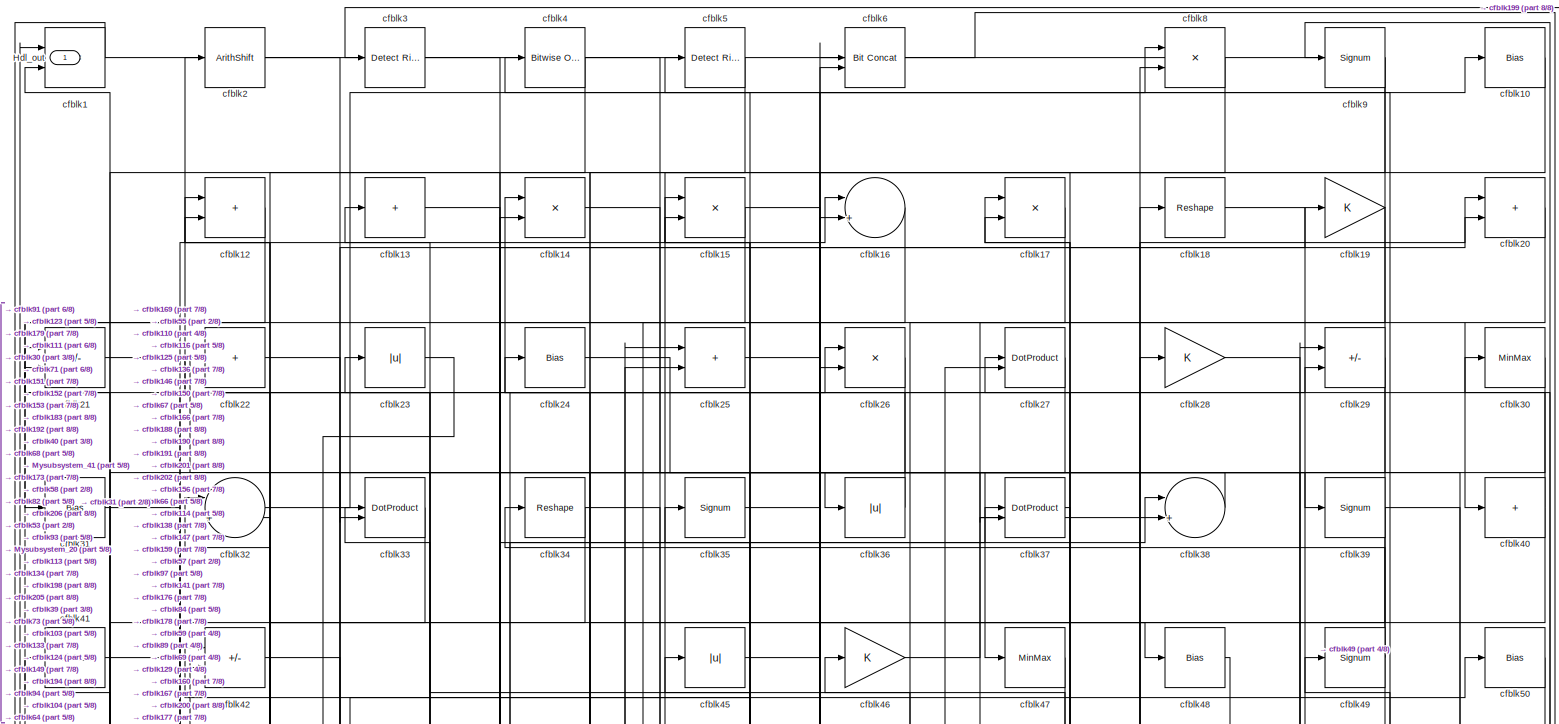
[diagram: root canvas - part 1/8, full width, top band]
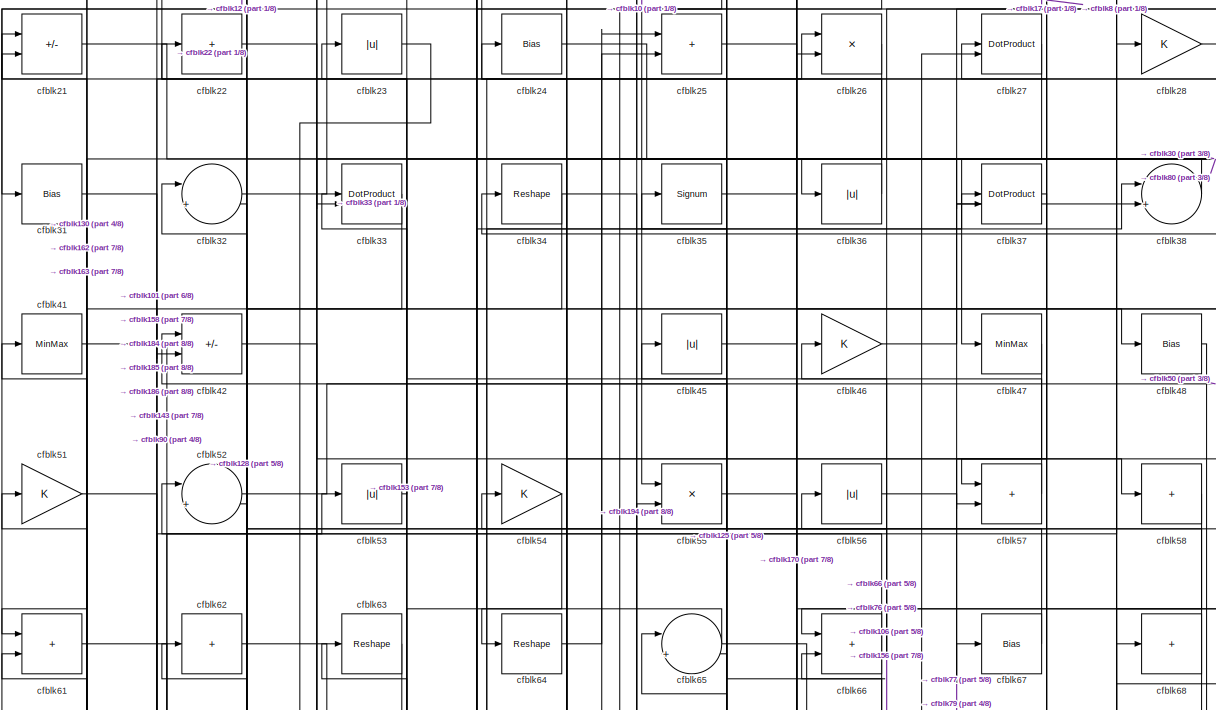
[diagram: root canvas - part 2/8, full width, top band]
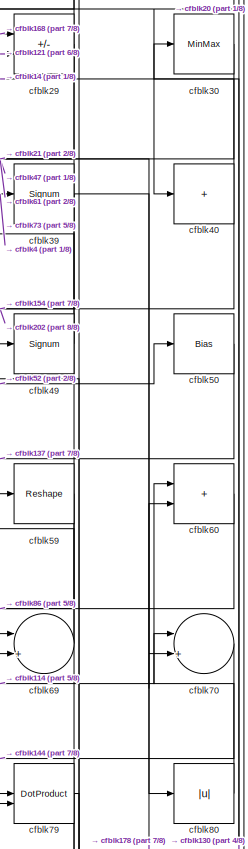
[diagram: root canvas - part 3/8, top right region]
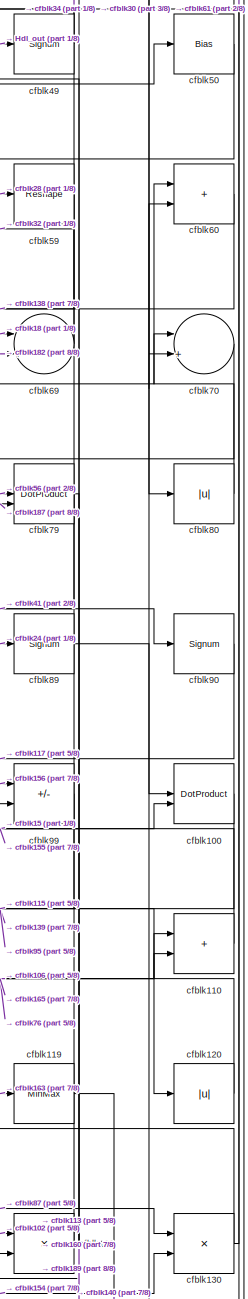
[diagram: root canvas - part 4/8, middle right region]
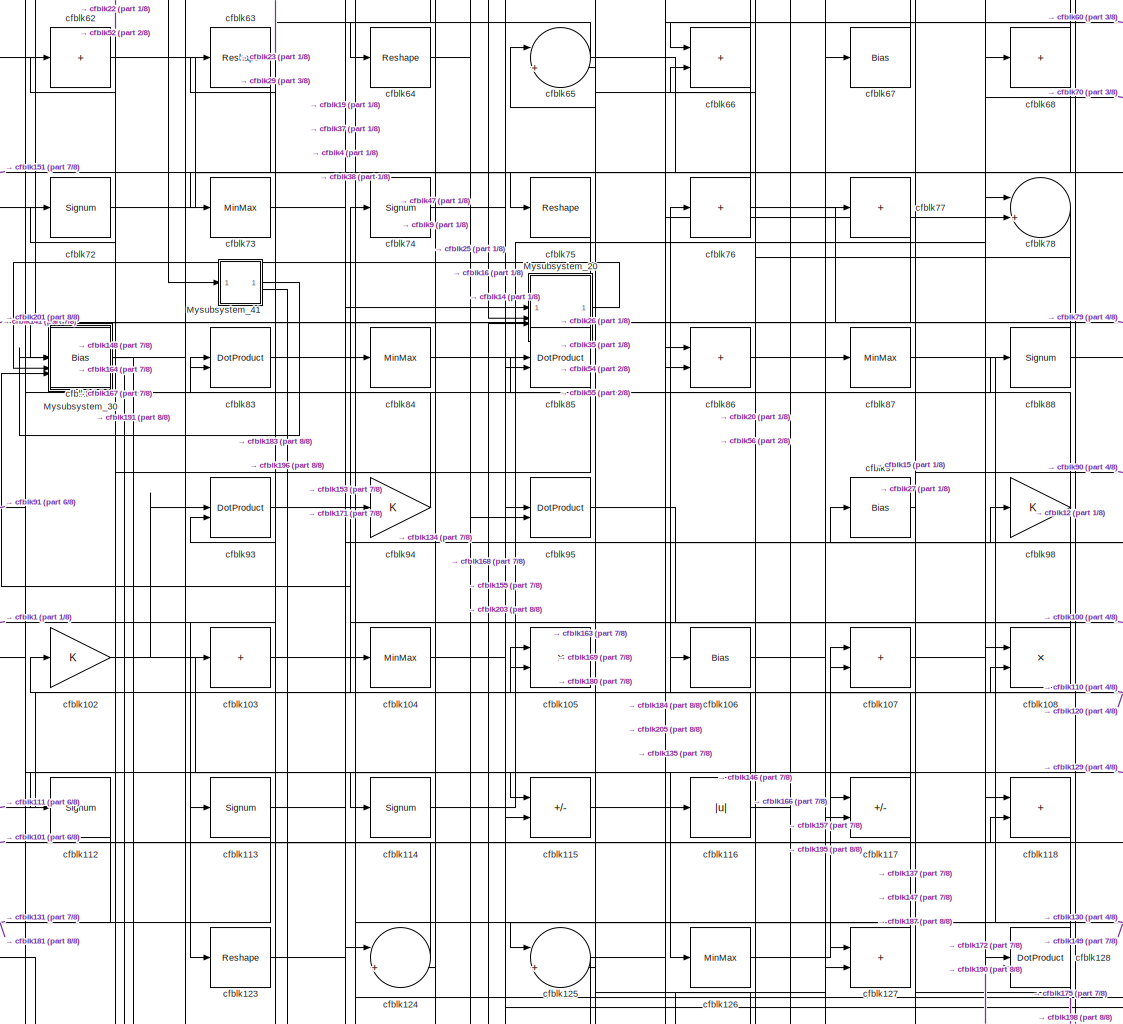
[diagram: root canvas - part 5/8, central region]
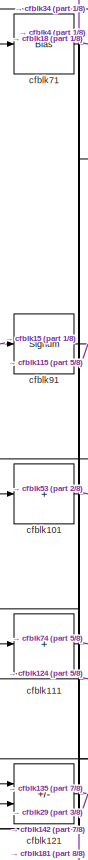
[diagram: root canvas - part 6/8, middle left region]
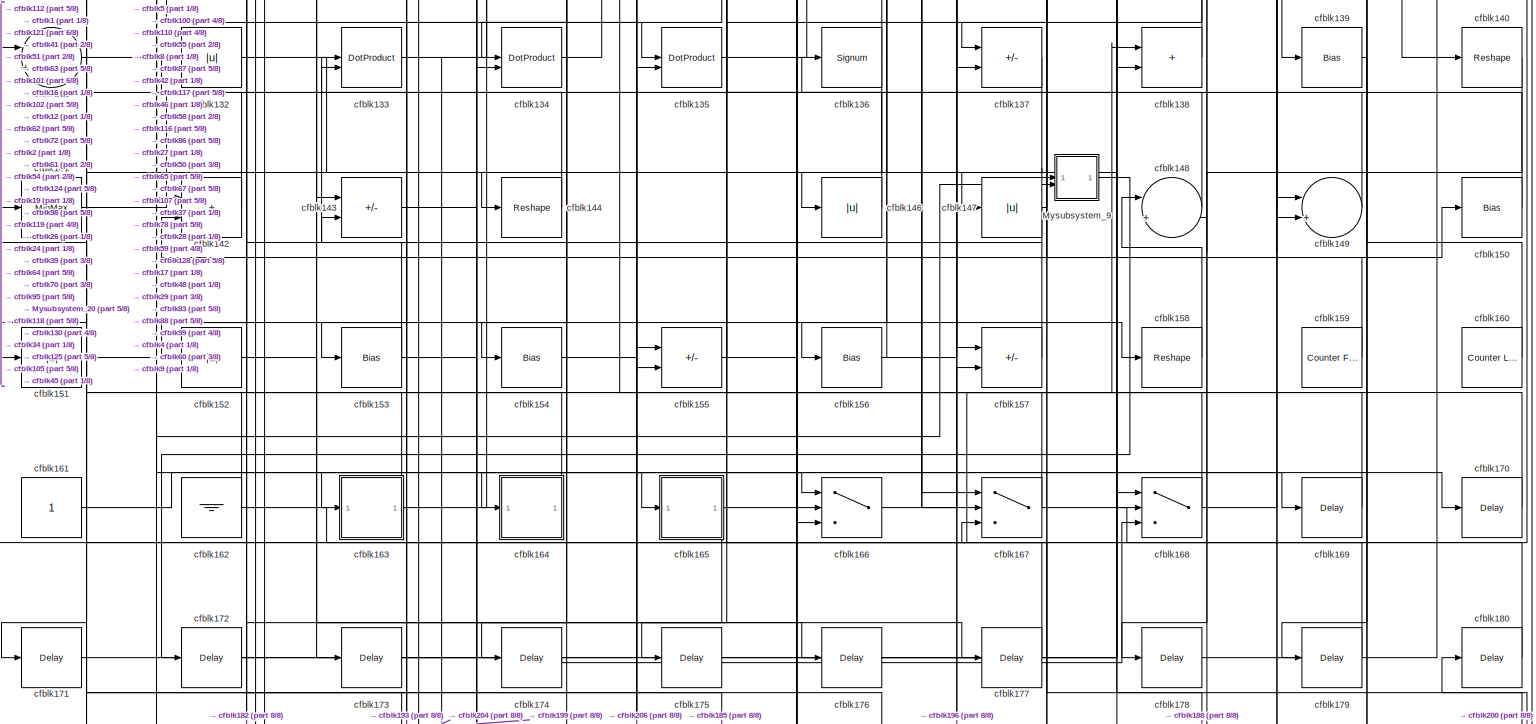
[diagram: root canvas - part 7/8, full width, bottom band]
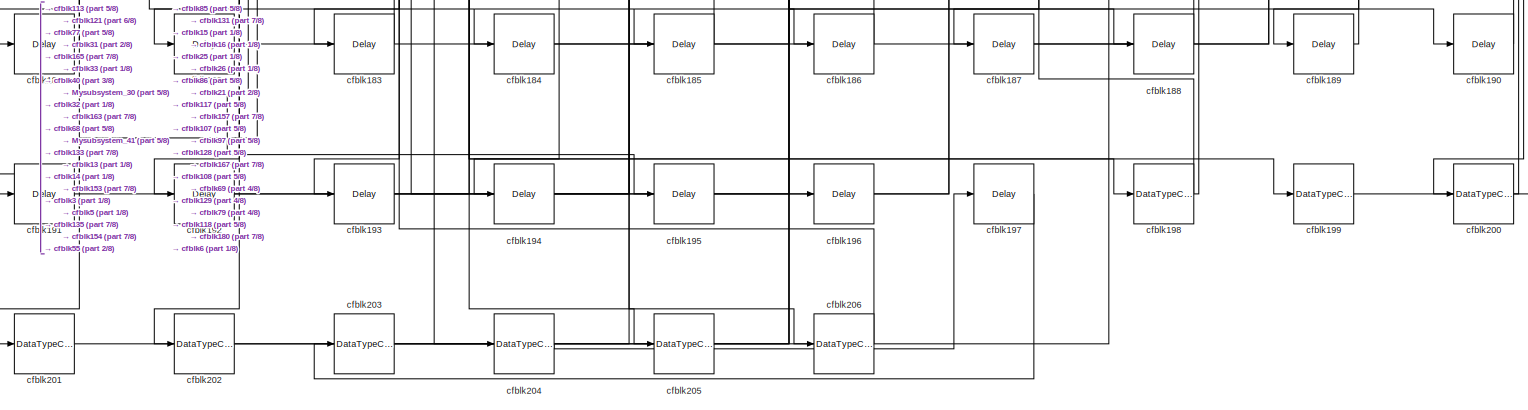
[diagram: root canvas - part 8/8, full width, bottom band]
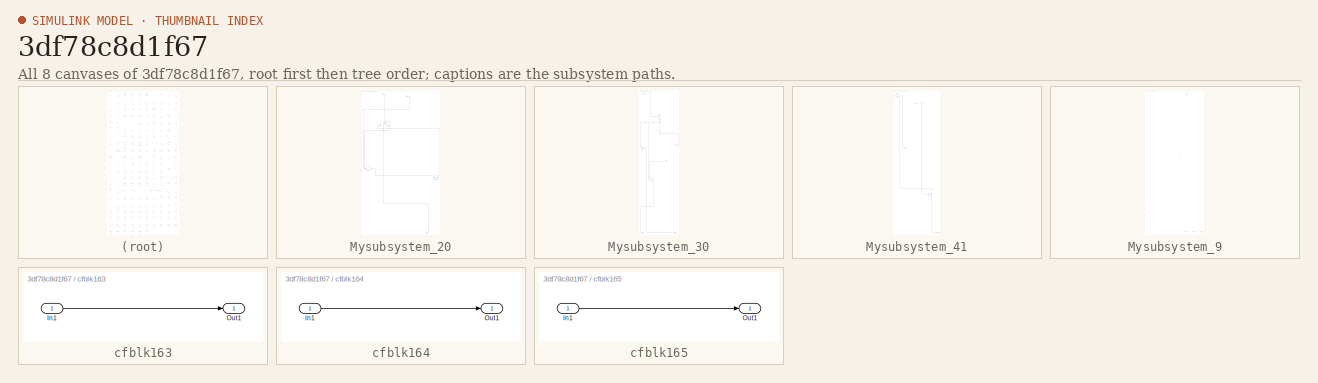
[diagram: thumbnail index - all 8 canvases of the model, root first then tree order]
MODEL slx_3df78c8d1f67
KIND model
CONFIG AbsTol = auto
CONFIG EnableMultiTasking = off
CONFIG FixedStep = auto
CONFIG MaxStep = auto
CONFIG MinStep = auto
CONFIG RelTol = 1e-3
CONFIG SampleTimeConstraint = Unconstrained
CONFIG SolverName = VariableStepAuto
CONFIG StartTime = 0.0
CONFIG StopTime = 10.0
BLOCK [Outport] Hdl_out
  OutDataTypeStr = uint8
BLOCK [SubSystem] Mysubsystem_20
  RTWFcnName = Mysubsystem_20
  RTWFcnNameOpts = User specified
  RTWFileNameOpts = Use function name
  RTWSystemCode = Reusable function
  TreatAsAtomicUnit = on
BLOCK [Inport] Mysubsystem_20/In1
BLOCK [Inport] Mysubsystem_20/In2
  Port = 2
BLOCK [Inport] Mysubsystem_20/In3
  Port = 3
BLOCK [Outport] Mysubsystem_20/Out1
BLOCK [Bias] Mysubsystem_20/cfblk109
  Bias = 0.0
  SaturateOnIntegerOverflow = off
BLOCK [Sum] Mysubsystem_20/cfblk44
  IconShape = rectangular
BLOCK [Sum] Mysubsystem_20/cfblk92
  IconShape = rectangular
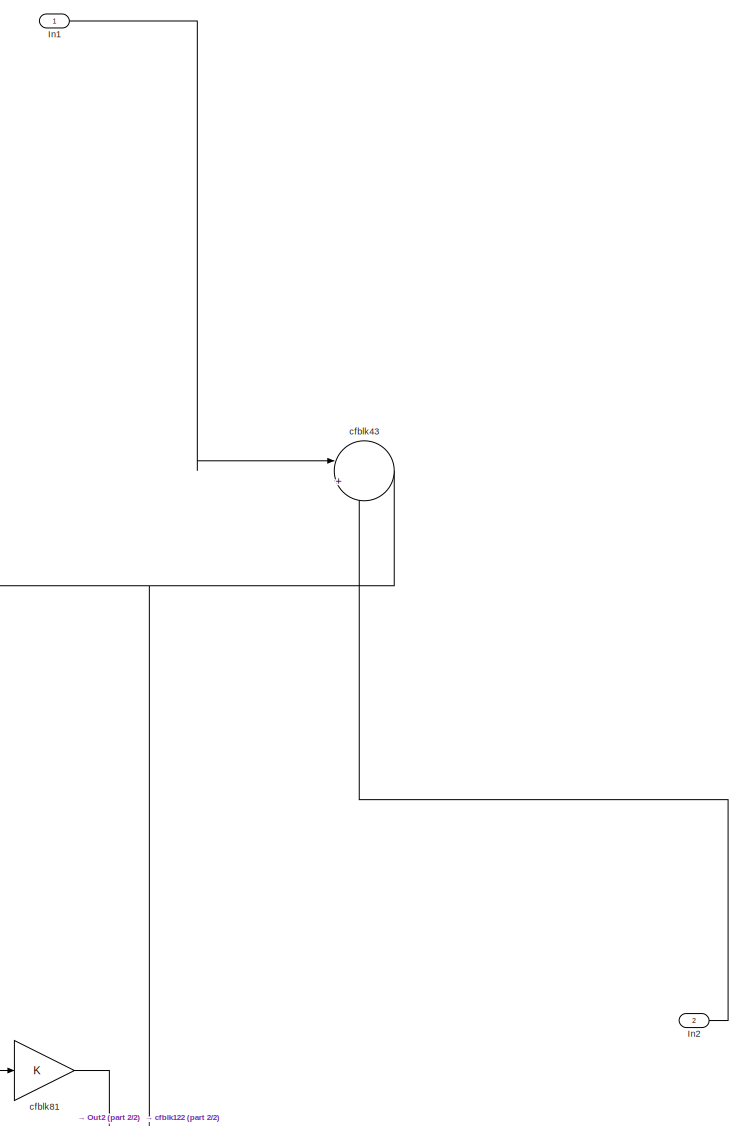
[diagram: Mysubsystem_30 - part 1/2, full width, top band]
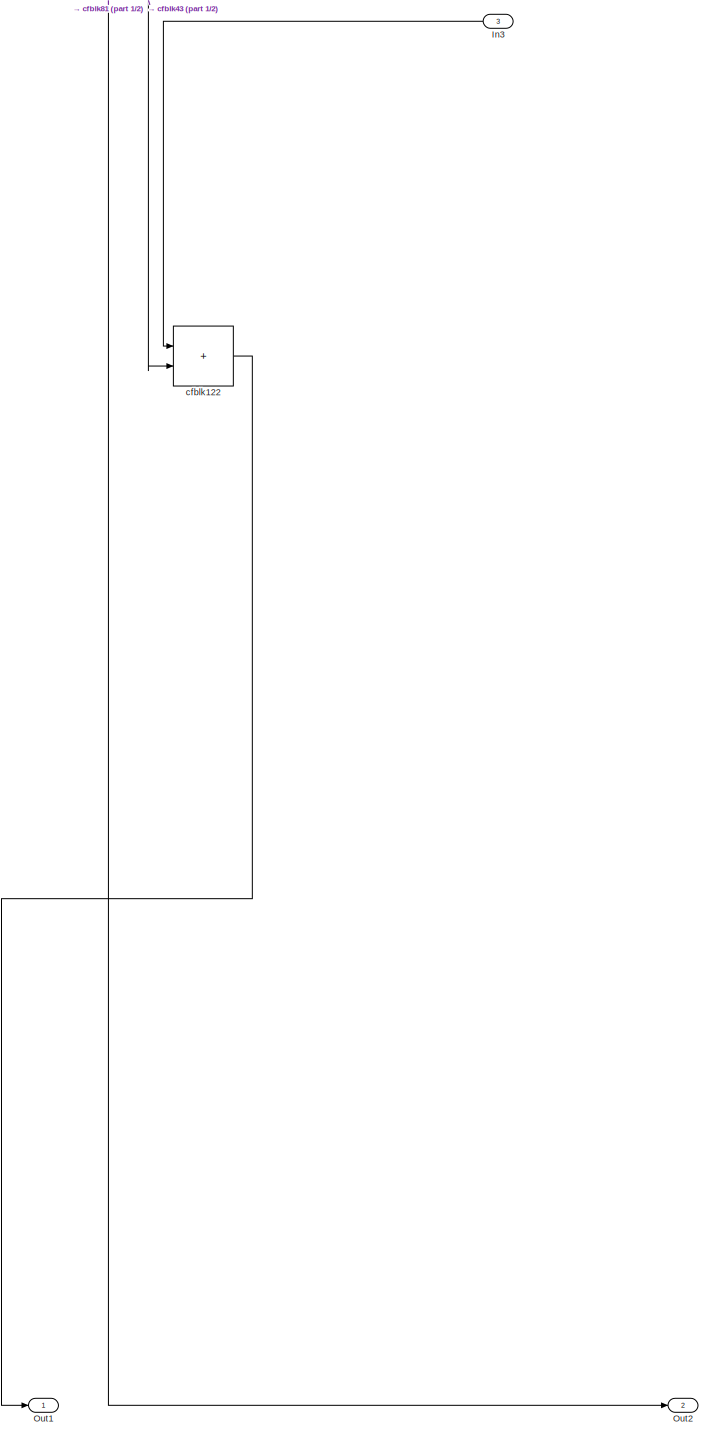
[diagram: Mysubsystem_30 - part 2/2, full width, bottom band]
BLOCK [SubSystem] Mysubsystem_30
  RTWFcnName = Mysubsystem_30
  RTWFcnNameOpts = User specified
  RTWFileNameOpts = Use function name
  RTWSystemCode = Reusable function
  TreatAsAtomicUnit = on
BLOCK [Inport] Mysubsystem_30/In1
BLOCK [Inport] Mysubsystem_30/In2
  Port = 2
BLOCK [Inport] Mysubsystem_30/In3
  Port = 3
BLOCK [Outport] Mysubsystem_30/Out1
BLOCK [Outport] Mysubsystem_30/Out2
  Port = 2
BLOCK [Sum] Mysubsystem_30/cfblk122
  IconShape = rectangular
BLOCK [Sum] Mysubsystem_30/cfblk43
  Inputs = |++
BLOCK [Gain] Mysubsystem_30/cfblk81
BLOCK [SubSystem] Mysubsystem_41
  RTWFcnName = Mysubsystem_41
  RTWFcnNameOpts = User specified
  RTWFileNameOpts = Use function name
  RTWSystemCode = Reusable function
  TreatAsAtomicUnit = on
BLOCK [Inport] Mysubsystem_41/In1
BLOCK [Outport] Mysubsystem_41/Out1
BLOCK [Outport] Mysubsystem_41/Out2
  Port = 2
BLOCK [Sum] Mysubsystem_41/cfblk11
  IconShape = rectangular
  Inputs = +
BLOCK [Reshape] Mysubsystem_41/cfblk145
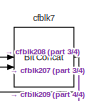
[diagram: Mysubsystem_9 - part 1/4, top right region]
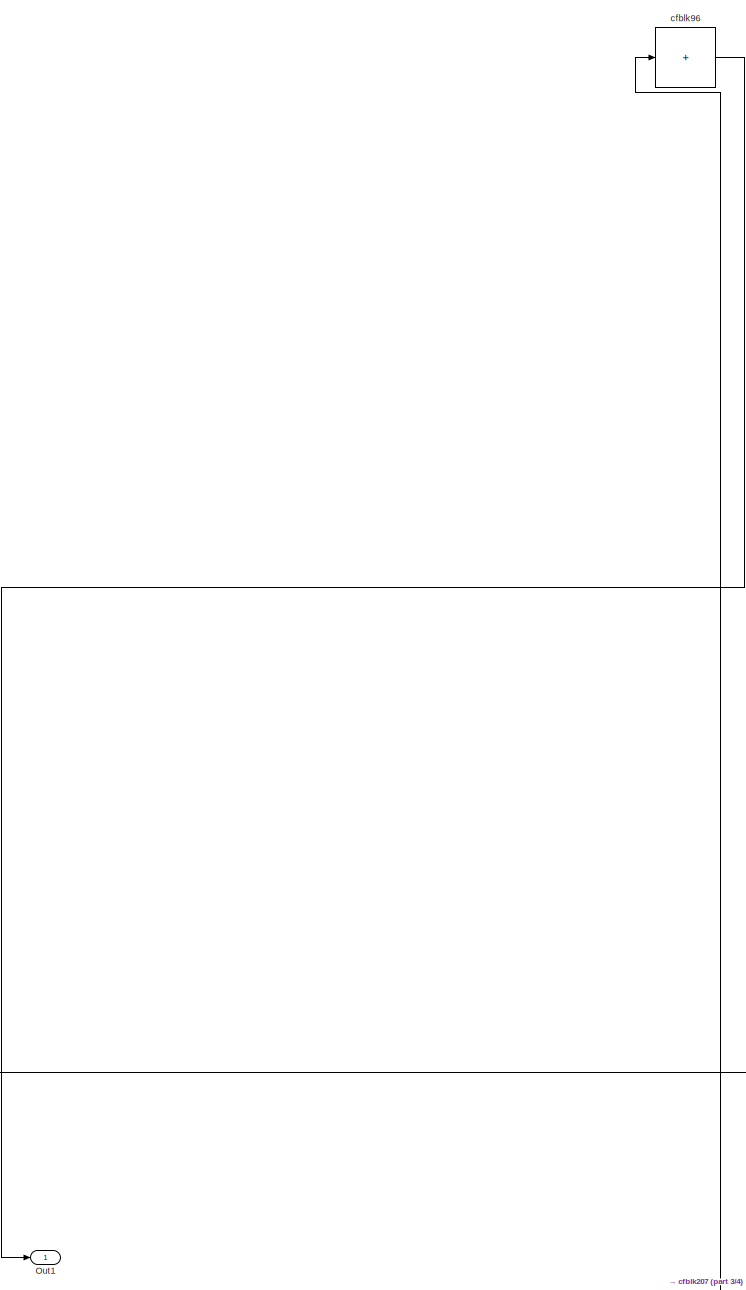
[diagram: Mysubsystem_9 - part 2/4, central region]
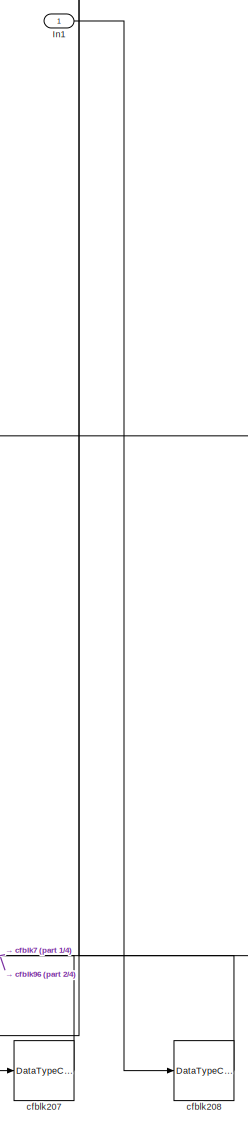
[diagram: Mysubsystem_9 - part 3/4, bottom right region]
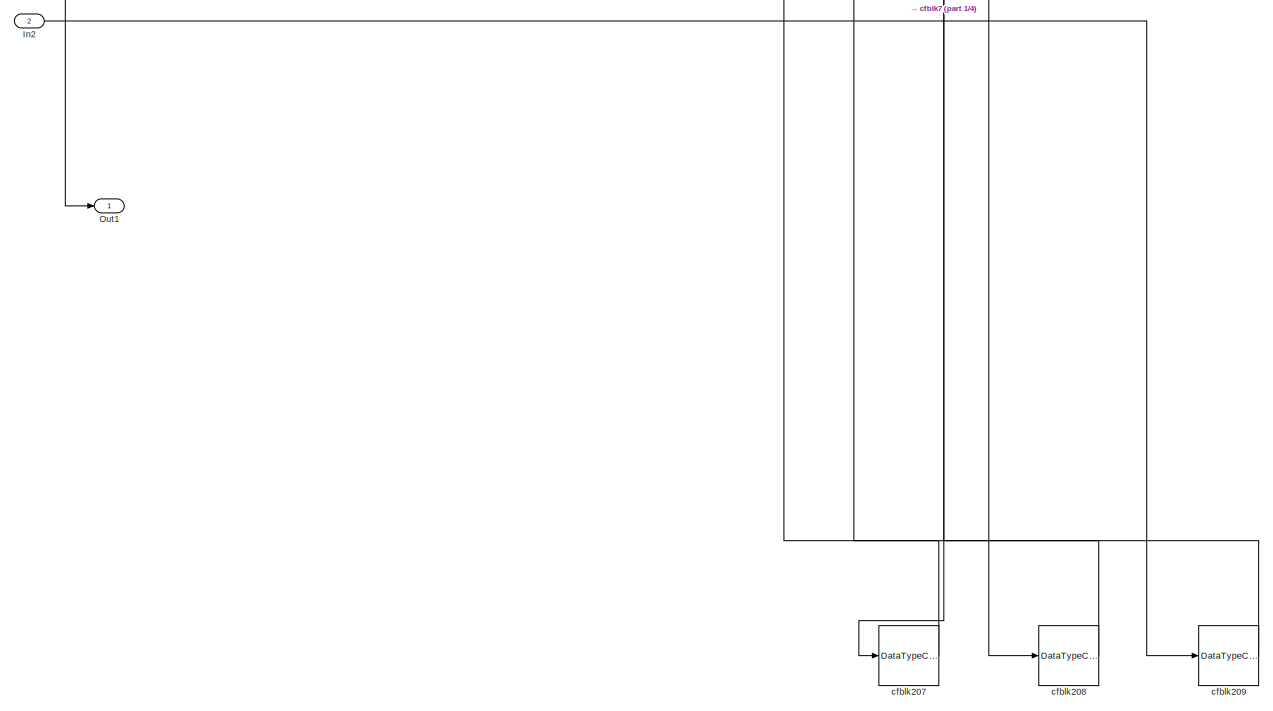
[diagram: Mysubsystem_9 - part 4/4, full width, bottom band]
BLOCK [SubSystem] Mysubsystem_9
  RTWFcnName = Mysubsystem_9
  RTWFcnNameOpts = User specified
  RTWFileNameOpts = Use function name
  RTWSystemCode = Reusable function
  TreatAsAtomicUnit = on
BLOCK [Inport] Mysubsystem_9/In1
BLOCK [Inport] Mysubsystem_9/In2
  Port = 2
BLOCK [Outport] Mysubsystem_9/Out1
BLOCK [DataTypeConversion] Mysubsystem_9/cfblk207
  OutDataTypeStr = uint8
  RndMeth = Floor
  SaturateOnIntegerOverflow = off
BLOCK [DataTypeConversion] Mysubsystem_9/cfblk208
  OutDataTypeStr = uint8
  RndMeth = Floor
  SaturateOnIntegerOverflow = off
BLOCK [DataTypeConversion] Mysubsystem_9/cfblk209
  OutDataTypeStr = uint8
  RndMeth = Floor
  SaturateOnIntegerOverflow = off
BLOCK [Reference] Mysubsystem_9/cfblk7  REF=hdlsllib/Logic and Bit
Operations/Bit Concat
  SourceBlock = hdlsllib/Logic and Bit\nOperations/Bit Concat
  SourceType = Bit Concat
BLOCK [Sum] Mysubsystem_9/cfblk96
  IconShape = rectangular
  Inputs = +
BLOCK [RelationalOperator] cfblk1
  InputSameDT = off
  Operator = <=
  OutDataTypeStr = boolean
BLOCK [Bias] cfblk10
  Bias = 0.0
  SaturateOnIntegerOverflow = off
BLOCK [DotProduct] cfblk100
  OutDataTypeStr = uint8
BLOCK [Sum] cfblk101
  IconShape = rectangular
  Inputs = +
  OutDataTypeStr = uint8
BLOCK [Gain] cfblk102
  OutDataTypeStr = uint8
BLOCK [Sum] cfblk103
  IconShape = rectangular
  Inputs = +
  OutDataTypeStr = uint8
BLOCK [MinMax] cfblk104
  OutDataTypeStr = uint8
BLOCK [Product] cfblk105
  Inputs = */
  OutDataTypeStr = uint8
  RndMeth = Zero
  SaturateOnIntegerOverflow = on
BLOCK [Bias] cfblk106
  Bias = 0.0
  SaturateOnIntegerOverflow = off
BLOCK [Sum] cfblk107
  IconShape = rectangular
  OutDataTypeStr = uint8
BLOCK [Product] cfblk108
  Inputs = */
  OutDataTypeStr = uint8
  RndMeth = Zero
  SaturateOnIntegerOverflow = on
BLOCK [Sum] cfblk110
  IconShape = rectangular
  OutDataTypeStr = uint8
BLOCK [Sum] cfblk111
  IconShape = rectangular
  Inputs = +
  OutDataTypeStr = uint8
BLOCK [Signum] cfblk112
BLOCK [Signum] cfblk113
BLOCK [Signum] cfblk114
BLOCK [Sum] cfblk115
  IconShape = rectangular
  Inputs = +-
  OutDataTypeStr = uint8
BLOCK [Abs] cfblk116
  OutDataTypeStr = uint8
  SaturateOnIntegerOverflow = off
BLOCK [Sum] cfblk117
  IconShape = rectangular
  Inputs = +-
  OutDataTypeStr = uint8
BLOCK [Sum] cfblk118
  IconShape = rectangular
  OutDataTypeStr = uint8
BLOCK [MinMax] cfblk119
  OutDataTypeStr = uint8
BLOCK [Sum] cfblk12
  IconShape = rectangular
  OutDataTypeStr = uint8
BLOCK [Abs] cfblk120
  OutDataTypeStr = uint8
  SaturateOnIntegerOverflow = off
BLOCK [Sum] cfblk121
  IconShape = rectangular
  Inputs = +-
  OutDataTypeStr = uint8
BLOCK [Reshape] cfblk123
BLOCK [Sum] cfblk124
  Inputs = |++
  OutDataTypeStr = uint8
BLOCK [Sum] cfblk125
  Inputs = |++
  OutDataTypeStr = uint8
BLOCK [MinMax] cfblk126
  OutDataTypeStr = uint8
BLOCK [Sum] cfblk127
  IconShape = rectangular
  OutDataTypeStr = uint8
BLOCK [DotProduct] cfblk128
  OutDataTypeStr = uint8
BLOCK [Product] cfblk129
  Inputs = */
  OutDataTypeStr = uint8
  RndMeth = Zero
  SaturateOnIntegerOverflow = on
BLOCK [Sum] cfblk13
  IconShape = rectangular
  Inputs = +
  OutDataTypeStr = uint8
BLOCK [Product] cfblk130
  Inputs = */
  OutDataTypeStr = uint8
  RndMeth = Zero
  SaturateOnIntegerOverflow = on
BLOCK [Sum] cfblk131
  Inputs = |++
  OutDataTypeStr = uint8
BLOCK [Abs] cfblk132
  OutDataTypeStr = uint8
  SaturateOnIntegerOverflow = off
BLOCK [DotProduct] cfblk133
  OutDataTypeStr = uint8
BLOCK [DotProduct] cfblk134
  OutDataTypeStr = uint8
BLOCK [DotProduct] cfblk135
  OutDataTypeStr = uint8
BLOCK [Signum] cfblk136
BLOCK [Sum] cfblk137
  IconShape = rectangular
  Inputs = +-
  OutDataTypeStr = uint8
BLOCK [Sum] cfblk138
  IconShape = rectangular
  OutDataTypeStr = uint8
BLOCK [Bias] cfblk139
  Bias = 0.0
  SaturateOnIntegerOverflow = off
BLOCK [Product] cfblk14
  Inputs = */
  OutDataTypeStr = uint8
  RndMeth = Zero
  SaturateOnIntegerOverflow = on
BLOCK [Reshape] cfblk140
BLOCK [MinMax] cfblk141
  OutDataTypeStr = uint8
BLOCK [Sum] cfblk142
  IconShape = rectangular
  OutDataTypeStr = uint8
BLOCK [Sum] cfblk143
  IconShape = rectangular
  Inputs = +-
  OutDataTypeStr = uint8
BLOCK [Reshape] cfblk144
BLOCK [Abs] cfblk146
  OutDataTypeStr = uint8
  SaturateOnIntegerOverflow = off
BLOCK [Abs] cfblk147
  OutDataTypeStr = uint8
  SaturateOnIntegerOverflow = off
BLOCK [Sum] cfblk148
  Inputs = |++
  OutDataTypeStr = uint8
BLOCK [Sum] cfblk149
  Inputs = |++
  OutDataTypeStr = uint8
BLOCK [Product] cfblk15
  Inputs = */
  OutDataTypeStr = uint8
  RndMeth = Zero
  SaturateOnIntegerOverflow = on
BLOCK [Bias] cfblk150
  Bias = 0.0
  SaturateOnIntegerOverflow = off
BLOCK [Abs] cfblk151
  OutDataTypeStr = uint8
  SaturateOnIntegerOverflow = off
BLOCK [Abs] cfblk152
  OutDataTypeStr = uint8
  SaturateOnIntegerOverflow = off
BLOCK [Bias] cfblk153
  Bias = 0.0
  SaturateOnIntegerOverflow = off
BLOCK [Bias] cfblk154
  Bias = 0.0
  SaturateOnIntegerOverflow = off
BLOCK [Sum] cfblk155
  IconShape = rectangular
  Inputs = +-
  OutDataTypeStr = uint8
BLOCK [Bias] cfblk156
  Bias = 0.0
  SaturateOnIntegerOverflow = off
BLOCK [Sum] cfblk157
  IconShape = rectangular
  Inputs = +-
  OutDataTypeStr = uint8
BLOCK [Reshape] cfblk158
BLOCK [Reference] cfblk159  REF=hdlsllib/Sources/Counter
Free-Running
  SourceBlock = hdlsllib/Sources/Counter\nFree-Running
  SourceType = Counter Free-Running
BLOCK [Sum] cfblk16
  Inputs = |++
  OutDataTypeStr = uint8
BLOCK [Reference] cfblk160  REF=hdlsllib/Sources/Counter
Limited
  SourceBlock = hdlsllib/Sources/Counter\nLimited
  SourceType = Counter Limited
BLOCK [Constant] cfblk161
  OutDataTypeStr = uint8
  SampleTime = -1
BLOCK [Ground] cfblk162
BLOCK [SubSystem] cfblk163
  LibrarySourceBlock = hdlsllib/Ports &\nSubsystems/Subsystem
BLOCK [Inport] cfblk163/In1
BLOCK [Outport] cfblk163/Out1
BLOCK [SubSystem] cfblk164
  LibrarySourceBlock = hdlsllib/Ports &\nSubsystems/Subsystem
BLOCK [Inport] cfblk164/In1
BLOCK [Outport] cfblk164/Out1
BLOCK [SubSystem] cfblk165
  LibrarySourceBlock = hdlsllib/Ports &\nSubsystems/Subsystem
BLOCK [Inport] cfblk165/In1
BLOCK [Outport] cfblk165/Out1
BLOCK [Switch] cfblk166
  InputSameDT = off
  OutDataTypeStr = uint8
  SaturateOnIntegerOverflow = off
BLOCK [Switch] cfblk167
  InputSameDT = off
  OutDataTypeStr = uint8
  SaturateOnIntegerOverflow = off
BLOCK [Switch] cfblk168
  InputSameDT = off
  OutDataTypeStr = uint8
  SaturateOnIntegerOverflow = off
BLOCK [Delay] cfblk169
  InputPortMap = u0
  SampleTime = 1
BLOCK [Product] cfblk17
  Inputs = */
  OutDataTypeStr = uint8
  RndMeth = Zero
  SaturateOnIntegerOverflow = on
BLOCK [Delay] cfblk170
  InputPortMap = u0
  SampleTime = 1
BLOCK [Delay] cfblk171
  InputPortMap = u0
  SampleTime = 1
BLOCK [Delay] cfblk172
  InputPortMap = u0
  SampleTime = 1
BLOCK [Delay] cfblk173
  InputPortMap = u0
  SampleTime = 1
BLOCK [Delay] cfblk174
  InputPortMap = u0
  SampleTime = 1
BLOCK [Delay] cfblk175
  InputPortMap = u0
  SampleTime = 1
BLOCK [Delay] cfblk176
  InputPortMap = u0
  SampleTime = 1
BLOCK [Delay] cfblk177
  InputPortMap = u0
  SampleTime = 1
BLOCK [Delay] cfblk178
  InputPortMap = u0
  SampleTime = 1
BLOCK [Delay] cfblk179
  InputPortMap = u0
  SampleTime = 1
BLOCK [Reshape] cfblk18
BLOCK [Delay] cfblk180
  InputPortMap = u0
  SampleTime = 1
BLOCK [Delay] cfblk181
  InputPortMap = u0
  SampleTime = 1
BLOCK [Delay] cfblk182
  InputPortMap = u0
  SampleTime = 1
BLOCK [Delay] cfblk183
  InputPortMap = u0
  SampleTime = 1
BLOCK [Delay] cfblk184
  InputPortMap = u0
  SampleTime = 1
BLOCK [Delay] cfblk185
  InputPortMap = u0
  SampleTime = 1
BLOCK [Delay] cfblk186
  InputPortMap = u0
  SampleTime = 1
BLOCK [Delay] cfblk187
  InputPortMap = u0
  SampleTime = 1
BLOCK [Delay] cfblk188
  InputPortMap = u0
  SampleTime = 1
BLOCK [Delay] cfblk189
  InputPortMap = u0
  SampleTime = 1
BLOCK [Gain] cfblk19
  OutDataTypeStr = uint8
BLOCK [Delay] cfblk190
  InputPortMap = u0
  SampleTime = 1
BLOCK [Delay] cfblk191
  InputPortMap = u0
  SampleTime = 1
BLOCK [Delay] cfblk192
  InputPortMap = u0
  SampleTime = 1
BLOCK [Delay] cfblk193
  InputPortMap = u0
  SampleTime = 1
BLOCK [Delay] cfblk194
  InputPortMap = u0
  SampleTime = 1
BLOCK [Delay] cfblk195
  InputPortMap = u0
  SampleTime = 1
BLOCK [Delay] cfblk196
  InputPortMap = u0
  SampleTime = 1
BLOCK [Delay] cfblk197
  InputPortMap = u0
  SampleTime = 1
BLOCK [DataTypeConversion] cfblk198
  OutDataTypeStr = uint8
  RndMeth = Floor
  SaturateOnIntegerOverflow = off
BLOCK [DataTypeConversion] cfblk199
  OutDataTypeStr = uint8
  RndMeth = Floor
  SaturateOnIntegerOverflow = off
BLOCK [ArithShift] cfblk2
  BitShiftNumber = 8
  InputPortMap = u0
BLOCK [Sum] cfblk20
  IconShape = rectangular
  OutDataTypeStr = uint8
BLOCK [DataTypeConversion] cfblk200
  OutDataTypeStr = uint8
  RndMeth = Floor
  SaturateOnIntegerOverflow = off
BLOCK [DataTypeConversion] cfblk201
  OutDataTypeStr = uint8
  RndMeth = Floor
  SaturateOnIntegerOverflow = off
BLOCK [DataTypeConversion] cfblk202
  OutDataTypeStr = uint8
  RndMeth = Floor
  SaturateOnIntegerOverflow = off
BLOCK [DataTypeConversion] cfblk203
  OutDataTypeStr = uint8
  RndMeth = Floor
  SaturateOnIntegerOverflow = off
BLOCK [DataTypeConversion] cfblk204
  OutDataTypeStr = uint8
  RndMeth = Floor
  SaturateOnIntegerOverflow = off
BLOCK [DataTypeConversion] cfblk205
  OutDataTypeStr = uint8
  RndMeth = Floor
  SaturateOnIntegerOverflow = off
BLOCK [DataTypeConversion] cfblk206
  OutDataTypeStr = uint8
  RndMeth = Floor
  SaturateOnIntegerOverflow = off
BLOCK [Sum] cfblk21
  IconShape = rectangular
  Inputs = +-
  OutDataTypeStr = uint8
BLOCK [Sum] cfblk22
  IconShape = rectangular
  Inputs = +
  OutDataTypeStr = uint8
BLOCK [Abs] cfblk23
  OutDataTypeStr = uint8
  SaturateOnIntegerOverflow = off
BLOCK [Bias] cfblk24
  Bias = 0.0
  SaturateOnIntegerOverflow = off
BLOCK [Sum] cfblk25
  IconShape = rectangular
  OutDataTypeStr = uint8
BLOCK [Product] cfblk26
  Inputs = */
  OutDataTypeStr = uint8
  RndMeth = Zero
  SaturateOnIntegerOverflow = on
BLOCK [DotProduct] cfblk27
  OutDataTypeStr = uint8
BLOCK [Gain] cfblk28
  OutDataTypeStr = uint8
BLOCK [Sum] cfblk29
  IconShape = rectangular
  Inputs = +-
  OutDataTypeStr = uint8
BLOCK [Reference] cfblk3  REF=hdlsllib/Logic and Bit
Operations/Detect Rise
Positive
  SourceBlock = hdlsllib/Logic and Bit\nOperations/Detect Rise\nPositive
  SourceType = Detect Rise Positive
BLOCK [MinMax] cfblk30
  OutDataTypeStr = uint8
BLOCK [Bias] cfblk31
  Bias = 0.0
  SaturateOnIntegerOverflow = off
BLOCK [Sum] cfblk32
  Inputs = |++
  OutDataTypeStr = uint8
BLOCK [DotProduct] cfblk33
  OutDataTypeStr = uint8
BLOCK [Reshape] cfblk34
BLOCK [Signum] cfblk35
BLOCK [Abs] cfblk36
  OutDataTypeStr = uint8
  SaturateOnIntegerOverflow = off
BLOCK [DotProduct] cfblk37
  OutDataTypeStr = uint8
BLOCK [Sum] cfblk38
  Inputs = |++
  OutDataTypeStr = uint8
BLOCK [Signum] cfblk39
BLOCK [Reference] cfblk4  REF=simulink/Logic and Bit
Operations/Bitwise
Operator
  LibrarySourceBlock = hdlsllib/Logic and Bit\nOperations/Bitwise\nOperator
  SourceBlock = simulink/Logic and Bit\nOperations/Bitwise\nOperator
  SourceType = Bitwise Operator
BLOCK [Sum] cfblk40
  IconShape = rectangular
  Inputs = +
  OutDataTypeStr = uint8
BLOCK [MinMax] cfblk41
  OutDataTypeStr = uint8
BLOCK [Sum] cfblk42
  IconShape = rectangular
  Inputs = +-
  OutDataTypeStr = uint8
BLOCK [Abs] cfblk45
  OutDataTypeStr = uint8
  SaturateOnIntegerOverflow = off
BLOCK [Gain] cfblk46
  OutDataTypeStr = uint8
BLOCK [MinMax] cfblk47
  OutDataTypeStr = uint8
BLOCK [Bias] cfblk48
  Bias = 0.0
  SaturateOnIntegerOverflow = off
BLOCK [Signum] cfblk49
BLOCK [Reference] cfblk5  REF=hdlsllib/Logic and Bit
Operations/Detect Rise
Positive
  SourceBlock = hdlsllib/Logic and Bit\nOperations/Detect Rise\nPositive
  SourceType = Detect Rise Positive
BLOCK [Bias] cfblk50
  Bias = 0.0
  SaturateOnIntegerOverflow = off
BLOCK [Gain] cfblk51
  OutDataTypeStr = uint8
BLOCK [Sum] cfblk52
  Inputs = |++
  OutDataTypeStr = uint8
BLOCK [Abs] cfblk53
  OutDataTypeStr = uint8
  SaturateOnIntegerOverflow = off
BLOCK [Gain] cfblk54
  OutDataTypeStr = uint8
BLOCK [Product] cfblk55
  Inputs = */
  OutDataTypeStr = uint8
  RndMeth = Zero
  SaturateOnIntegerOverflow = on
BLOCK [Abs] cfblk56
  OutDataTypeStr = uint8
  SaturateOnIntegerOverflow = off
BLOCK [Sum] cfblk57
  IconShape = rectangular
  OutDataTypeStr = uint8
BLOCK [Sum] cfblk58
  IconShape = rectangular
  Inputs = +
  OutDataTypeStr = uint8
BLOCK [Reshape] cfblk59
BLOCK [Reference] cfblk6  REF=hdlsllib/Logic and Bit
Operations/Bit Concat
  SourceBlock = hdlsllib/Logic and Bit\nOperations/Bit Concat
  SourceType = Bit Concat
BLOCK [Sum] cfblk60
  IconShape = rectangular
  OutDataTypeStr = uint8
BLOCK [Sum] cfblk61
  IconShape = rectangular
  OutDataTypeStr = uint8
BLOCK [Sum] cfblk62
  IconShape = rectangular
  Inputs = +
  OutDataTypeStr = uint8
BLOCK [Reshape] cfblk63
BLOCK [Reshape] cfblk64
BLOCK [Sum] cfblk65
  Inputs = |++
  OutDataTypeStr = uint8
BLOCK [Sum] cfblk66
  IconShape = rectangular
  OutDataTypeStr = uint8
BLOCK [Bias] cfblk67
  Bias = 0.0
  SaturateOnIntegerOverflow = off
BLOCK [Sum] cfblk68
  IconShape = rectangular
  Inputs = +
  OutDataTypeStr = uint8
BLOCK [Sum] cfblk69
  Inputs = |++
  OutDataTypeStr = uint8
BLOCK [Sum] cfblk70
  Inputs = |++
  OutDataTypeStr = uint8
BLOCK [Bias] cfblk71
  Bias = 0.0
  SaturateOnIntegerOverflow = off
BLOCK [Signum] cfblk72
BLOCK [MinMax] cfblk73
  OutDataTypeStr = uint8
BLOCK [Signum] cfblk74
BLOCK [Reshape] cfblk75
BLOCK [Sum] cfblk76
  IconShape = rectangular
  Inputs = +
  OutDataTypeStr = uint8
BLOCK [Sum] cfblk77
  IconShape = rectangular
  Inputs = +
  OutDataTypeStr = uint8
BLOCK [Sum] cfblk78
  Inputs = |++
  OutDataTypeStr = uint8
BLOCK [DotProduct] cfblk79
  OutDataTypeStr = uint8
BLOCK [Product] cfblk8
  Inputs = */
  OutDataTypeStr = uint8
  RndMeth = Zero
  SaturateOnIntegerOverflow = on
BLOCK [Abs] cfblk80
  OutDataTypeStr = uint8
  SaturateOnIntegerOverflow = off
BLOCK [Bias] cfblk82
  Bias = 0.0
  SaturateOnIntegerOverflow = off
BLOCK [DotProduct] cfblk83
  OutDataTypeStr = uint8
BLOCK [MinMax] cfblk84
  OutDataTypeStr = uint8
BLOCK [DotProduct] cfblk85
  OutDataTypeStr = uint8
BLOCK [Sum] cfblk86
  IconShape = rectangular
  OutDataTypeStr = uint8
BLOCK [MinMax] cfblk87
  OutDataTypeStr = uint8
BLOCK [Signum] cfblk88
BLOCK [Signum] cfblk89
BLOCK [Signum] cfblk9
BLOCK [Signum] cfblk90
BLOCK [Signum] cfblk91
BLOCK [DotProduct] cfblk93
  OutDataTypeStr = uint8
BLOCK [Gain] cfblk94
  OutDataTypeStr = uint8
BLOCK [DotProduct] cfblk95
  OutDataTypeStr = uint8
BLOCK [Bias] cfblk97
  Bias = 0.0
  SaturateOnIntegerOverflow = off
BLOCK [Gain] cfblk98
  OutDataTypeStr = uint8
BLOCK [Sum] cfblk99
  IconShape = rectangular
  Inputs = +-
  OutDataTypeStr = uint8
LINE Mysubsystem_20/In1:1 -> Mysubsystem_20/cfblk44:2
LINE Mysubsystem_20/In2:1 -> Mysubsystem_20/cfblk92:1
LINE Mysubsystem_20/In3:1 -> Mysubsystem_20/cfblk44:1
LINE Mysubsystem_20/cfblk109:1 -> Mysubsystem_20/Out1:1
LINE Mysubsystem_20/cfblk44:1 -> Mysubsystem_20/cfblk92:2
LINE Mysubsystem_20/cfblk92:1 -> Mysubsystem_20/cfblk109:1
LINE Mysubsystem_20:1 -> Mysubsystem_30:2
LINE Mysubsystem_30/In1:1 -> Mysubsystem_30/cfblk43:1
LINE Mysubsystem_30/In2:1 -> Mysubsystem_30/cfblk43:2
LINE Mysubsystem_30/In3:1 -> Mysubsystem_30/cfblk122:1
LINE Mysubsystem_30/cfblk122:1 -> Mysubsystem_30/Out1:1
NET Mysubsystem_30/cfblk43:1 -> Mysubsystem_30/cfblk122:2, Mysubsystem_30/cfblk81:1
LINE Mysubsystem_30/cfblk81:1 -> Mysubsystem_30/Out2:1
LINE Mysubsystem_30:1 -> cfblk191:1
LINE Mysubsystem_30:2 -> cfblk195:1
LINE Mysubsystem_41/In1:1 -> Mysubsystem_41/cfblk145:1
LINE Mysubsystem_41/cfblk11:1 -> Mysubsystem_41/Out1:1
NET Mysubsystem_41/cfblk145:1 -> Mysubsystem_41/Out2:1, Mysubsystem_41/cfblk11:1
LINE Mysubsystem_41:1 -> Mysubsystem_30:1
LINE Mysubsystem_41:2 -> cfblk196:1
LINE Mysubsystem_9/In1:1 -> Mysubsystem_9/cfblk208:1
LINE Mysubsystem_9/In2:1 -> Mysubsystem_9/cfblk209:1
LINE Mysubsystem_9/cfblk207:1 -> Mysubsystem_9/cfblk96:1
LINE Mysubsystem_9/cfblk208:1 -> Mysubsystem_9/cfblk7:1
LINE Mysubsystem_9/cfblk209:1 -> Mysubsystem_9/cfblk7:2
LINE Mysubsystem_9/cfblk7:1 -> Mysubsystem_9/cfblk207:1
LINE Mysubsystem_9/cfblk96:1 -> Mysubsystem_9/Out1:1
LINE Mysubsystem_9:1 -> cfblk172:1
LINE cfblk100:1 -> cfblk115:1
NET cfblk101:1 -> cfblk142:1, cfblk53:1
NET cfblk102:1 -> cfblk129:1, cfblk93:1
LINE cfblk103:1 -> cfblk38:1
NET cfblk104:1 -> cfblk25:1, cfblk88:1
LINE cfblk105:1 -> cfblk85:1
NET cfblk106:1 -> cfblk110:2, cfblk56:1
NET cfblk107:1 -> cfblk187:1, cfblk68:1
LINE cfblk108:1 -> cfblk106:1
LINE cfblk10:1 -> cfblk55:1
LINE cfblk110:1 -> cfblk15:2
LINE cfblk111:1 -> cfblk74:1
LINE cfblk112:1 -> cfblk131:1
NET cfblk113:1 -> cfblk181:1, cfblk37:1
LINE cfblk114:1 -> cfblk70:1
LINE cfblk115:1 -> cfblk126:1
NET cfblk116:1 -> cfblk167:2, cfblk35:1
NET cfblk117:1 -> cfblk146:1, cfblk93:2
LINE cfblk118:1 -> cfblk155:2
LINE cfblk119:1 -> cfblk140:1
LINE cfblk120:1 -> cfblk76:1
NET cfblk121:1 -> cfblk135:1, cfblk29:2
LINE cfblk123:1 -> cfblk105:1
LINE cfblk124:1 -> cfblk101:1
NET cfblk125:1 -> cfblk163:1, cfblk78:2
LINE cfblk126:1 -> cfblk107:1
LINE cfblk127:1 -> cfblk63:1
NET cfblk128:1 -> cfblk175:1, cfblk52:2
NET cfblk129:1 -> Hdl_out:1, cfblk49:1
LINE cfblk12:1 -> cfblk31:1
NET cfblk130:1 -> cfblk30:1, cfblk61:2
LINE cfblk131:1 -> cfblk118:2
LINE cfblk132:1 -> cfblk168:2
NET cfblk133:1 -> cfblk204:1, cfblk26:1
NET cfblk134:1 -> cfblk164:1, cfblk95:2
LINE cfblk135:1 -> cfblk87:1
NET cfblk136:1 -> cfblk174:1, cfblk42:1
NET cfblk137:1 -> Mysubsystem_9:1, cfblk171:1
LINE cfblk138:1 -> cfblk17:1
LINE cfblk139:1 -> cfblk179:1
LINE cfblk13:1 -> cfblk205:1
LINE cfblk140:1 -> cfblk148:2
NET cfblk141:1 -> cfblk28:1, cfblk83:2
LINE cfblk142:1 -> cfblk121:1
LINE cfblk143:1 -> cfblk165:1
LINE cfblk144:1 -> cfblk132:1
LINE cfblk146:1 -> cfblk5:1
NET cfblk147:1 -> cfblk107:2, cfblk143:2
NET cfblk148:1 -> cfblk136:1, cfblk72:1
LINE cfblk149:1 -> cfblk24:1
LINE cfblk14:1 -> cfblk116:1
LINE cfblk150:1 -> cfblk45:1
NET cfblk151:1 -> Mysubsystem_9:2, cfblk166:1, cfblk16:1
LINE cfblk152:1 -> cfblk176:1
NET cfblk153:1 -> cfblk12:1, cfblk199:1, cfblk98:1
NET cfblk154:1 -> cfblk130:2, cfblk206:1
NET cfblk155:1 -> cfblk100:2, cfblk65:2
NET cfblk156:1 -> cfblk150:1, cfblk46:1, cfblk99:1
LINE cfblk157:1 -> cfblk133:1
NET cfblk158:1 -> cfblk142:2, cfblk148:1
LINE cfblk159:1 -> cfblk17:2
NET cfblk15:1 -> cfblk188:1, cfblk91:1
NET cfblk160:1 -> cfblk4:1, cfblk99:2
NET cfblk161:1 -> cfblk141:1, cfblk166:2
NET cfblk162:1 -> cfblk138:1, cfblk51:1
LINE cfblk163/In1:1 -> cfblk163/Out1:1
NET cfblk163:1 -> cfblk119:1, cfblk193:1, cfblk41:1
LINE cfblk164/In1:1 -> cfblk164/Out1:1
LINE cfblk164:1 -> cfblk102:1
LINE cfblk165/In1:1 -> cfblk165/Out1:1
NET cfblk165:1 -> cfblk110:1, cfblk182:1
NET cfblk166:1 -> cfblk27:2, cfblk67:1
NET cfblk167:1 -> cfblk62:1, cfblk9:1
NET cfblk168:1 -> Mysubsystem_20:3, cfblk29:1
LINE cfblk169:1 -> cfblk65:1
LINE cfblk16:1 -> Mysubsystem_20:2
LINE cfblk170:1 -> cfblk133:2
LINE cfblk171:1 -> cfblk124:1
LINE cfblk172:1 -> cfblk78:1
LINE cfblk173:1 -> cfblk155:1
LINE cfblk174:1 -> cfblk168:3
LINE cfblk175:1 -> cfblk168:1
LINE cfblk176:1 -> cfblk8:2
LINE cfblk177:1 -> cfblk1:2
LINE cfblk178:1 -> cfblk60:2
LINE cfblk179:1 -> cfblk1:1
LINE cfblk17:1 -> cfblk57:2
LINE cfblk180:1 -> cfblk105:2
LINE cfblk181:1 -> cfblk121:2
LINE cfblk182:1 -> cfblk69:2
LINE cfblk183:1 -> cfblk32:2
LINE cfblk184:1 -> cfblk86:1
LINE cfblk185:1 -> cfblk131:2
LINE cfblk186:1 -> cfblk21:2
LINE cfblk187:1 -> cfblk79:2
LINE cfblk188:1 -> cfblk167:3
LINE cfblk189:1 -> cfblk129:2
LINE cfblk18:1 -> cfblk69:1
LINE cfblk190:1 -> cfblk118:1
LINE cfblk191:1 -> cfblk26:2
LINE cfblk192:1 -> cfblk14:2
LINE cfblk193:1 -> cfblk135:2
LINE cfblk194:1 -> cfblk55:2
LINE cfblk195:1 -> cfblk117:2
LINE cfblk196:1 -> cfblk157:2
LINE cfblk197:1 -> cfblk203:1
NET cfblk198:1 -> cfblk108:2, cfblk97:1
LINE cfblk199:1 -> cfblk3:1
LINE cfblk19:1 -> cfblk134:2
LINE cfblk1:1 -> cfblk123:1
LINE cfblk200:1 -> cfblk180:1
LINE cfblk201:1 -> cfblk6:1
LINE cfblk202:1 -> cfblk6:2
LINE cfblk203:1 -> cfblk85:2
LINE cfblk204:1 -> cfblk197:1
NET cfblk205:1 -> cfblk128:1, cfblk16:2
LINE cfblk206:1 -> cfblk13:1
NET cfblk20:1 -> cfblk40:1, cfblk66:1
LINE cfblk21:1 -> cfblk80:1
LINE cfblk22:1 -> cfblk58:1
LINE cfblk23:1 -> Mysubsystem_41:1
LINE cfblk24:1 -> cfblk89:1
LINE cfblk25:1 -> cfblk190:1
NET cfblk26:1 -> cfblk124:2, cfblk125:1
NET cfblk27:1 -> cfblk33:2, cfblk37:2
LINE cfblk28:1 -> cfblk59:1
LINE cfblk29:1 -> cfblk73:1
LINE cfblk2:1 -> cfblk177:1
NET cfblk30:1 -> cfblk47:1, cfblk61:1
NET cfblk31:1 -> cfblk184:1, cfblk185:1, cfblk186:1
LINE cfblk32:1 -> cfblk10:1
LINE cfblk33:1 -> cfblk192:1
NET cfblk34:1 -> cfblk169:1, cfblk42:2, cfblk71:1
LINE cfblk35:1 -> cfblk8:1
LINE cfblk36:1 -> cfblk2:1
LINE cfblk37:1 -> cfblk147:1
LINE cfblk38:1 -> cfblk36:1
NET cfblk39:1 -> cfblk154:1, cfblk70:2
LINE cfblk3:1 -> cfblk198:1
NET cfblk40:1 -> cfblk14:1, cfblk202:1
LINE cfblk41:1 -> cfblk90:1
LINE cfblk42:1 -> cfblk173:1
LINE cfblk45:1 -> cfblk48:1
LINE cfblk46:1 -> cfblk38:2
LINE cfblk47:1 -> cfblk114:1
LINE cfblk48:1 -> cfblk178:1
LINE cfblk49:1 -> cfblk34:1
NET cfblk4:1 -> Mysubsystem_20:1, cfblk111:1, cfblk39:1
LINE cfblk50:1 -> cfblk137:2
LINE cfblk51:1 -> cfblk158:1
LINE cfblk52:1 -> cfblk50:1
LINE cfblk53:1 -> cfblk33:1
LINE cfblk54:1 -> cfblk153:1
NET cfblk55:1 -> cfblk125:2, cfblk170:1
NET cfblk56:1 -> cfblk77:1, cfblk79:1
LINE cfblk57:1 -> cfblk21:1
LINE cfblk58:1 -> cfblk156:1
LINE cfblk59:1 -> cfblk138:2
LINE cfblk5:1 -> cfblk194:1
LINE cfblk60:1 -> cfblk86:2
LINE cfblk61:1 -> cfblk143:1
LINE cfblk62:1 -> cfblk95:1
LINE cfblk63:1 -> cfblk151:1
NET cfblk64:1 -> cfblk134:1, cfblk25:2, cfblk84:1
NET cfblk65:1 -> cfblk157:1, cfblk64:1
NET cfblk66:1 -> cfblk103:1, cfblk52:1
LINE cfblk67:1 -> cfblk15:1
NET cfblk68:1 -> cfblk12:2, cfblk183:1
LINE cfblk69:1 -> cfblk32:1
LINE cfblk6:1 -> cfblk200:1
LINE cfblk70:1 -> cfblk144:1
LINE cfblk71:1 -> cfblk18:1
LINE cfblk72:1 -> cfblk75:1
LINE cfblk73:1 -> cfblk19:1
LINE cfblk74:1 -> cfblk127:1
LINE cfblk75:1 -> cfblk82:1
NET cfblk76:1 -> cfblk108:1, cfblk54:1
LINE cfblk77:1 -> cfblk201:1
LINE cfblk78:1 -> cfblk137:1
NET cfblk79:1 -> cfblk113:1, cfblk189:1
LINE cfblk80:1 -> cfblk60:1
LINE cfblk82:1 -> cfblk20:1
LINE cfblk83:1 -> cfblk149:1
LINE cfblk84:1 -> cfblk20:2
LINE cfblk85:1 -> cfblk112:1
NET cfblk86:1 -> cfblk128:2, cfblk167:1
LINE cfblk87:1 -> cfblk130:1
NET cfblk88:1 -> cfblk149:2, cfblk66:2
LINE cfblk89:1 -> cfblk100:1
NET cfblk8:1 -> cfblk166:3, cfblk57:1
LINE cfblk90:1 -> cfblk117:1
LINE cfblk91:1 -> cfblk115:2
NET cfblk93:1 -> cfblk127:2, cfblk23:1
LINE cfblk94:1 -> cfblk22:1
LINE cfblk95:1 -> cfblk120:1
LINE cfblk97:1 -> cfblk27:1
NET cfblk98:1 -> Mysubsystem_30:3, cfblk104:1, cfblk83:1
LINE cfblk99:1 -> cfblk139:1
NET cfblk9:1 -> cfblk152:1, cfblk94:1
note: NET lines group one-source signal fan-out (src -> all destinations, sorted); 1:1 wires keep LINE
